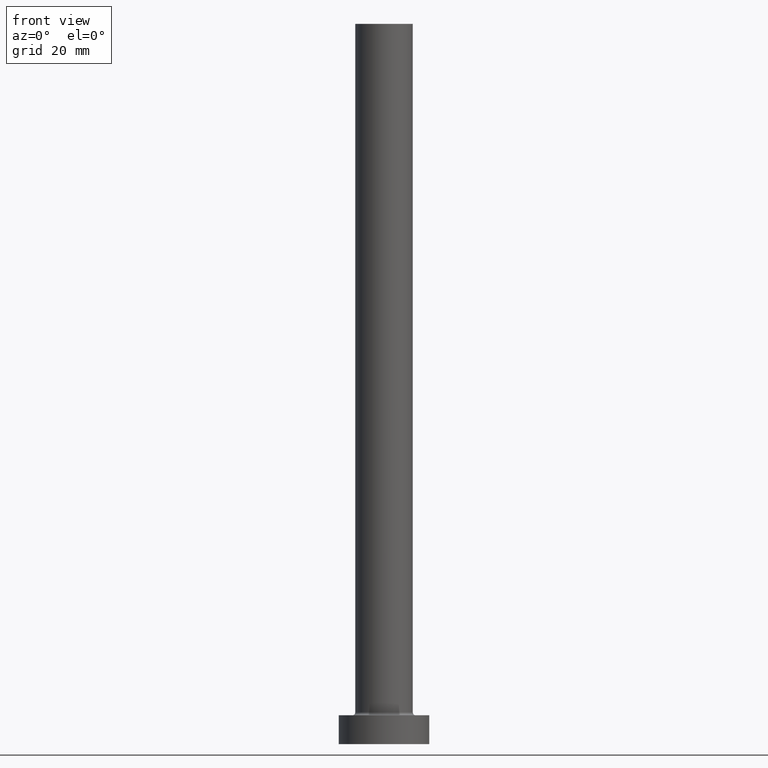
[diagram: clean part render]
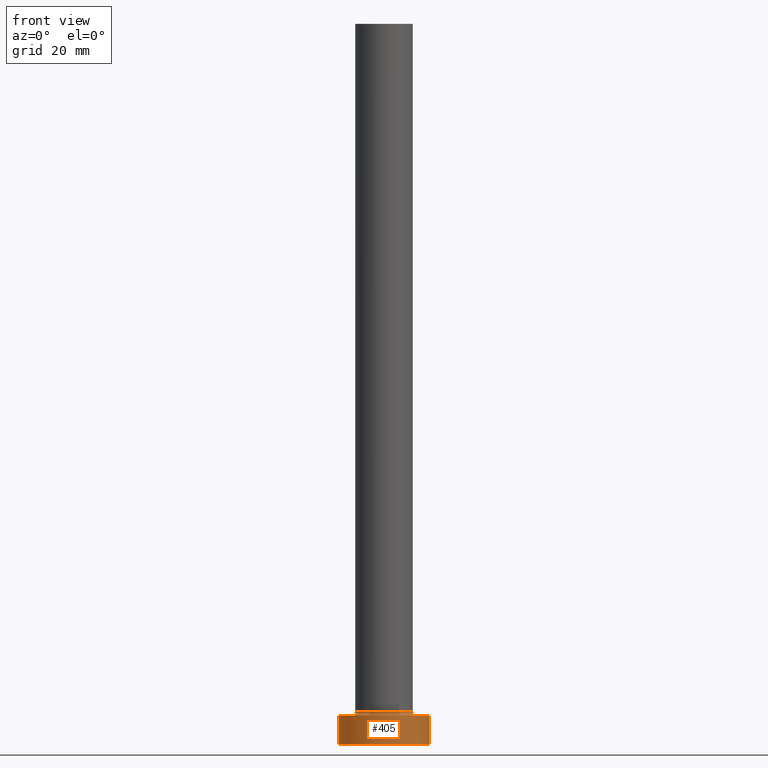
[diagram: same view with one face highlighted and labeled with its STEP entity id]
A machine part, front view. The second image highlights one B-rep face of the part: STEP entity #405.
In plain terms, the highlighted cylindrical surface (partial cylindrical patch) has radius 11 mm, axis along (-0, -0, -1).
Its self-contained STEP definition (entity closure, byte-faithful):
#2 = LINE ( 'NONE', #104, #370 ) ;
#14 = CARTESIAN_POINT ( 'NONE',  ( 11.00000000000000000, 1.347111479062088405E-15, 0.000000000000000000 ) ) ;
#28 = LINE ( 'NONE', #32, #143 ) ;
#32 = CARTESIAN_POINT ( 'NONE',  ( -11.00000000000000000, 0.000000000000000000, 7.000000000000000000 ) ) ;
#41 = EDGE_CURVE ( 'NONE', #129, #152, #2, .T. ) ;
#43 = DIRECTION ( 'NONE',  ( 0.000000000000000000, 0.000000000000000000, 1.000000000000000000 ) ) ;
#54 = EDGE_CURVE ( 'NONE', #68, #129, #151, .T. ) ;
#67 = DIRECTION ( 'NONE',  ( 1.000000000000000000, 0.000000000000000000, 0.000000000000000000 ) ) ;
#68 = VERTEX_POINT ( 'NONE', #399 ) ;
#71 = VERTEX_POINT ( 'NONE', #321 ) ;
#84 = CARTESIAN_POINT ( 'NONE',  ( 0.000000000000000000, 0.000000000000000000, 7.000000000000000000 ) ) ;
#102 = EDGE_LOOP ( 'NONE', ( #242, #439, #278, #276 ) ) ;
#104 = CARTESIAN_POINT ( 'NONE',  ( 11.00000000000000000, 1.347111479062088405E-15, 7.000000000000000000 ) ) ;
#123 = DIRECTION ( 'NONE',  ( 1.000000000000000000, 0.000000000000000000, 0.000000000000000000 ) ) ;
#129 = VERTEX_POINT ( 'NONE', #257 ) ;
#143 = VECTOR ( 'NONE', #235, 1000.000000000000000 ) ;
#151 = CIRCLE ( 'NONE', #427, 11.00000000000000000 ) ;
#152 = VERTEX_POINT ( 'NONE', #14 ) ;
#201 = CIRCLE ( 'NONE', #368, 11.00000000000000000 ) ;
#204 = DIRECTION ( 'NONE',  ( -0.000000000000000000, -0.000000000000000000, -1.000000000000000000 ) ) ;
#235 = DIRECTION ( 'NONE',  ( -0.000000000000000000, -0.000000000000000000, -1.000000000000000000 ) ) ;
#242 = ORIENTED_EDGE ( 'NONE', *, *, #41, .F. ) ;
#257 = CARTESIAN_POINT ( 'NONE',  ( 11.00000000000000000, 1.347111479062088405E-15, 7.000000000000000000 ) ) ;
#266 = AXIS2_PLACEMENT_3D ( 'NONE', #84, #204, #353 ) ;
#276 = ORIENTED_EDGE ( 'NONE', *, *, #445, .T. ) ;
#278 = ORIENTED_EDGE ( 'NONE', *, *, #314, .T. ) ;
#310 = CARTESIAN_POINT ( 'NONE',  ( 0.000000000000000000, 0.000000000000000000, 0.000000000000000000 ) ) ;
#314 = EDGE_CURVE ( 'NONE', #68, #71, #28, .T. ) ;
#321 = CARTESIAN_POINT ( 'NONE',  ( -11.00000000000000000, 0.000000000000000000, 0.000000000000000000 ) ) ;
#326 = DIRECTION ( 'NONE',  ( -0.000000000000000000, -0.000000000000000000, -1.000000000000000000 ) ) ;
#353 = DIRECTION ( 'NONE',  ( -1.000000000000000000, 0.000000000000000000, 0.000000000000000000 ) ) ;
#368 = AXIS2_PLACEMENT_3D ( 'NONE', #310, #456, #123 ) ;
#370 = VECTOR ( 'NONE', #326, 1000.000000000000000 ) ;
#380 = CYLINDRICAL_SURFACE ( 'NONE', #266, 11.00000000000000000 ) ;
#394 = CARTESIAN_POINT ( 'NONE',  ( 0.000000000000000000, 0.000000000000000000, 7.000000000000000000 ) ) ;
#399 = CARTESIAN_POINT ( 'NONE',  ( -11.00000000000000000, 0.000000000000000000, 7.000000000000000000 ) ) ;
#405 = ADVANCED_FACE ( 'NONE', ( #458 ), #380, .T. ) ;
#427 = AXIS2_PLACEMENT_3D ( 'NONE', #394, #43, #67 ) ;
#439 = ORIENTED_EDGE ( 'NONE', *, *, #54, .F. ) ;
#445 = EDGE_CURVE ( 'NONE', #71, #152, #201, .T. ) ;
#456 = DIRECTION ( 'NONE',  ( 0.000000000000000000, 0.000000000000000000, 1.000000000000000000 ) ) ;
#458 = FACE_OUTER_BOUND ( 'NONE', #102, .T. ) ;